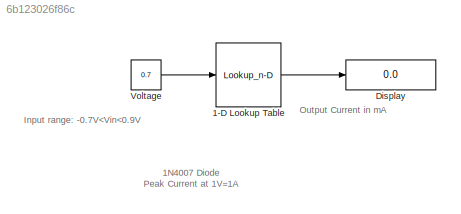
MODEL slx_6b123026f86c
KIND model
CONFIG AbsTol = auto
CONFIG EnableMultiTasking = off
CONFIG FixedStep = auto
CONFIG MaxStep = auto
CONFIG MinStep = auto
CONFIG RelTol = 1e-3
CONFIG SampleTimeConstraint = Unconstrained
CONFIG SolverName = VariableStepAuto
CONFIG StartTime = 0.0
CONFIG StopTime = 10.0
BLOCK [Lookup_n-D] 1-D Lookup Table
  BreakpointsForDimension1 = [-0.7:0.1:0.9]
  ExtrapMethod = Clip
  InputPortMap = u0
  InternalRulePriority = Speed
  NumberOfTableDimensions = 1
  Ports = [1, 1]
  RndMeth = Simplest
  Table = [-0.004998 -0.004997 -0.00499 -0.004986 -0.00497 -0.0049 -0.0043 0 0 0 0 0 0 10 50 110 800]
BLOCK [Display] Display
  Decimation = 1
  Ports = [1]
BLOCK [Constant] Voltage
  Value = 0.7
ANNOTATION (root): 1N4007 Diode Peak Current at 1V=1A
ANNOTATION (root): Input range: -0.7V<Vin<0.9V
ANNOTATION (root): Output Current in mA
LINE 1-D Lookup Table:1 -> Display:1
LINE Voltage:1 -> 1-D Lookup Table:1
